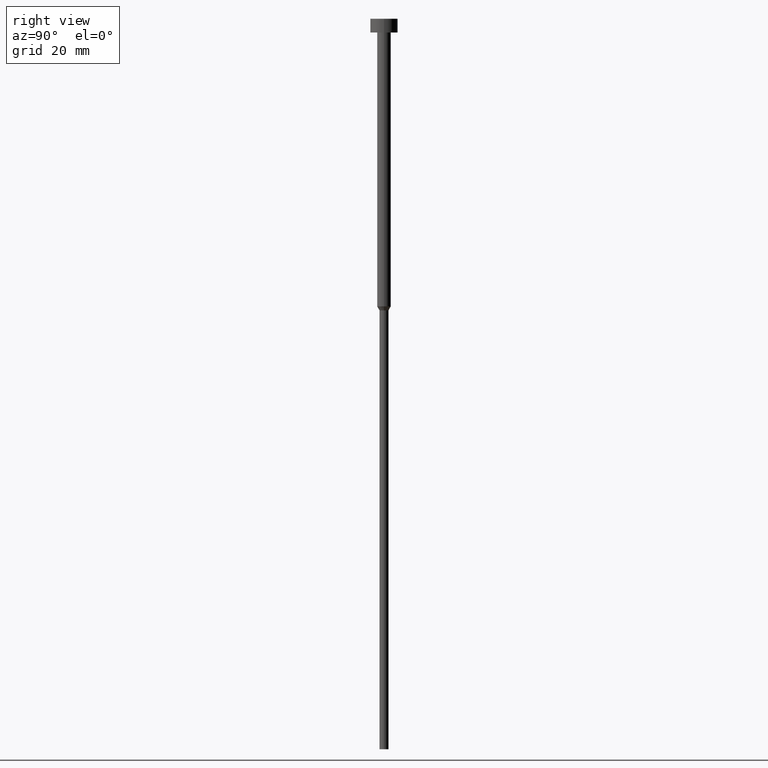
[diagram: clean part render]
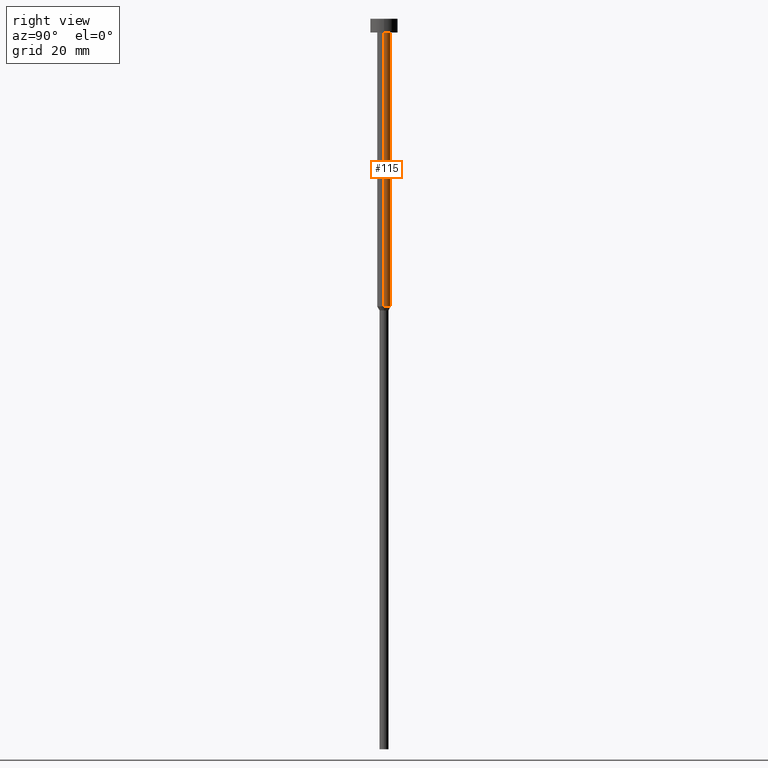
[diagram: same view with one face highlighted and labeled with its STEP entity id]
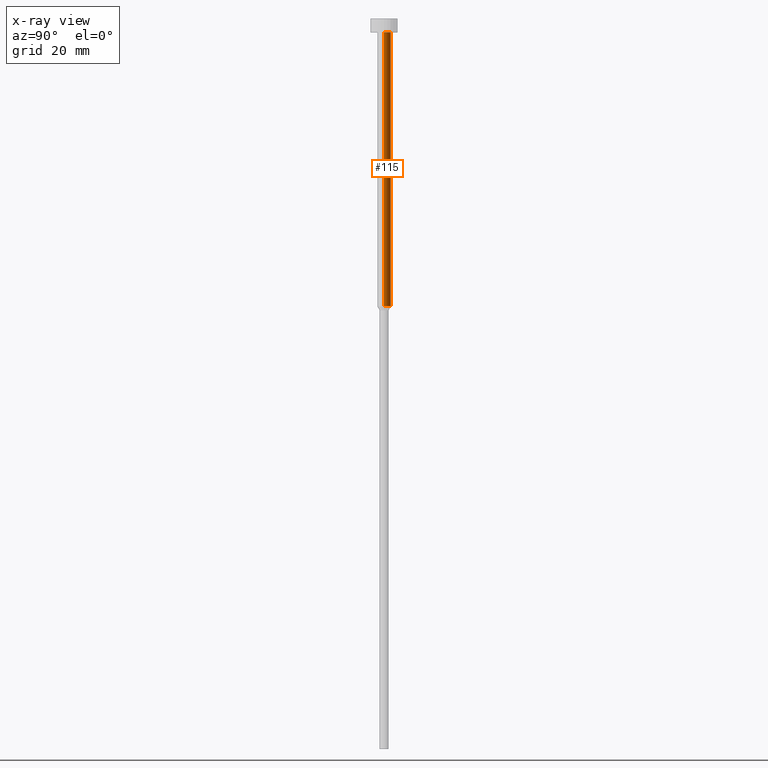
[diagram: x-ray of the same camera — body ghosted, the highlighted face saturated]
A machine part, right view. The second image highlights one B-rep face of the part: STEP entity #115.
The next image is the same camera in x-ray: the body ghosted, the highlighted face saturated — about 0% of this face is hidden behind the body in this view.
In plain terms, the highlighted cylindrical surface (edge-blend (fillet) strip) has radius 1.5 mm, axis along (-0, -0, 1).
Its self-contained STEP definition (entity closure, byte-faithful):
#26 = AXIS2_PLACEMENT_3D ( 'NONE', #339, #230, #154 ) ;
#35 = FACE_OUTER_BOUND ( 'NONE', #118, .T. ) ;
#36 = EDGE_CURVE ( 'NONE', #171, #300, #93, .T. ) ;
#38 = DIRECTION ( 'NONE',  ( -0.000000000000000000, -0.000000000000000000, 1.000000000000000000 ) ) ;
#39 = AXIS2_PLACEMENT_3D ( 'NONE', #47, #289, #42 ) ;
#41 = CARTESIAN_POINT ( 'NONE',  ( -1.500000000000000000, 1.836970198721029934E-16, -63.00000000000000000 ) ) ;
#42 = DIRECTION ( 'NONE',  ( 1.000000000000000000, 0.000000000000000000, 0.000000000000000000 ) ) ;
#47 = CARTESIAN_POINT ( 'NONE',  ( 0.000000000000000000, 0.000000000000000000, -3.000000000000000888 ) ) ;
#60 = VERTEX_POINT ( 'NONE', #286 ) ;
#66 = CIRCLE ( 'NONE', #39, 1.500000000000000000 ) ;
#82 = AXIS2_PLACEMENT_3D ( 'NONE', #203, #38, #151 ) ;
#93 = LINE ( 'NONE', #280, #341 ) ;
#103 = LINE ( 'NONE', #187, #252 ) ;
#108 = ORIENTED_EDGE ( 'NONE', *, *, #36, .F. ) ;
#115 = ADVANCED_FACE ( 'NONE', ( #35 ), #174, .T. ) ;
#118 = EDGE_LOOP ( 'NONE', ( #278, #295, #343, #108 ) ) ;
#129 = CIRCLE ( 'NONE', #26, 1.500000000000000000 ) ;
#133 = DIRECTION ( 'NONE',  ( -0.000000000000000000, -0.000000000000000000, 1.000000000000000000 ) ) ;
#151 = DIRECTION ( 'NONE',  ( 1.000000000000000000, 0.000000000000000000, 0.000000000000000000 ) ) ;
#153 = EDGE_CURVE ( 'NONE', #171, #355, #129, .T. ) ;
#154 = DIRECTION ( 'NONE',  ( 1.000000000000000000, 0.000000000000000000, 0.000000000000000000 ) ) ;
#158 = CARTESIAN_POINT ( 'NONE',  ( 1.500000000000000000, 0.000000000000000000, -3.000000000000000888 ) ) ;
#171 = VERTEX_POINT ( 'NONE', #235 ) ;
#174 = CYLINDRICAL_SURFACE ( 'NONE', #82, 1.500000000000000000 ) ;
#178 = DIRECTION ( 'NONE',  ( -0.000000000000000000, -0.000000000000000000, 1.000000000000000000 ) ) ;
#187 = CARTESIAN_POINT ( 'NONE',  ( -1.500000000000000000, 1.836970198721029934E-16, 0.000000000000000000 ) ) ;
#203 = CARTESIAN_POINT ( 'NONE',  ( 0.000000000000000000, 0.000000000000000000, 0.000000000000000000 ) ) ;
#230 = DIRECTION ( 'NONE',  ( -0.000000000000000000, -0.000000000000000000, 1.000000000000000000 ) ) ;
#235 = CARTESIAN_POINT ( 'NONE',  ( 1.500000000000000000, 0.000000000000000000, -63.00000000000000000 ) ) ;
#252 = VECTOR ( 'NONE', #133, 1000.000000000000000 ) ;
#263 = EDGE_CURVE ( 'NONE', #355, #60, #103, .T. ) ;
#278 = ORIENTED_EDGE ( 'NONE', *, *, #153, .T. ) ;
#280 = CARTESIAN_POINT ( 'NONE',  ( 1.500000000000000000, 0.000000000000000000, 0.000000000000000000 ) ) ;
#286 = CARTESIAN_POINT ( 'NONE',  ( -1.500000000000000000, 1.836970198721029934E-16, -3.000000000000000888 ) ) ;
#289 = DIRECTION ( 'NONE',  ( -0.000000000000000000, -0.000000000000000000, 1.000000000000000000 ) ) ;
#295 = ORIENTED_EDGE ( 'NONE', *, *, #263, .T. ) ;
#296 = EDGE_CURVE ( 'NONE', #300, #60, #66, .T. ) ;
#300 = VERTEX_POINT ( 'NONE', #158 ) ;
#339 = CARTESIAN_POINT ( 'NONE',  ( 0.000000000000000000, 0.000000000000000000, -63.00000000000000000 ) ) ;
#341 = VECTOR ( 'NONE', #178, 1000.000000000000000 ) ;
#343 = ORIENTED_EDGE ( 'NONE', *, *, #296, .F. ) ;
#355 = VERTEX_POINT ( 'NONE', #41 ) ;